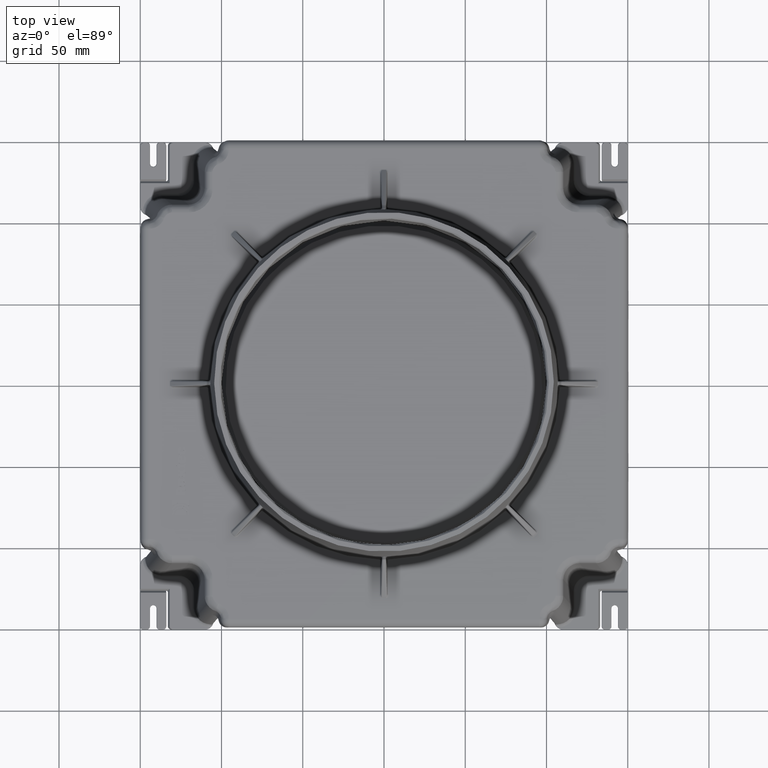
[diagram: clean part render]
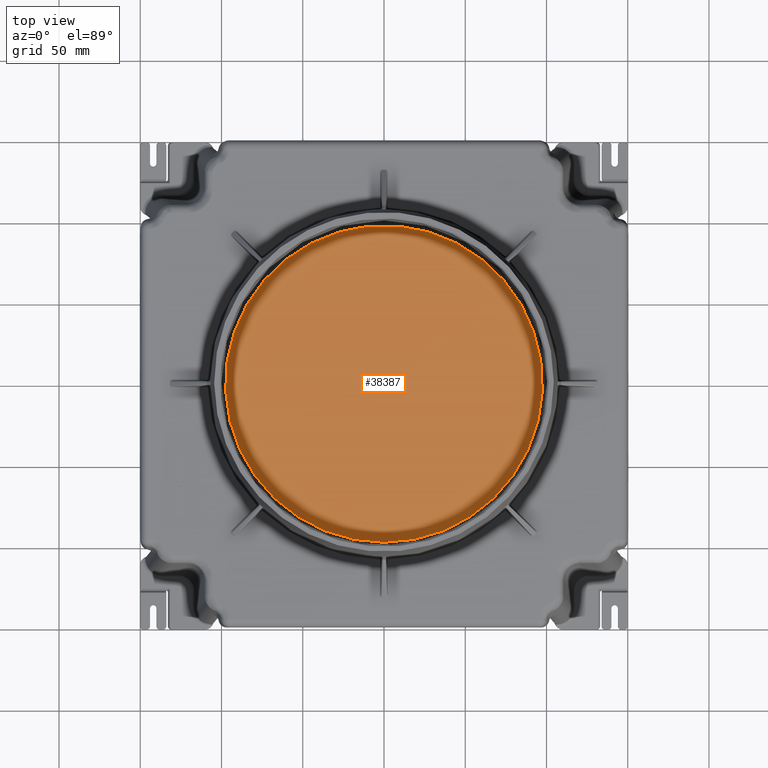
[diagram: same view with one face highlighted and labeled with its STEP entity id]
A machine part, top view. The second image highlights one B-rep face of the part: STEP entity #38387.
In plain terms, the highlighted planar face has unit normal (0, 0, 1).
Its self-contained STEP definition (entity closure, byte-faithful):
#38371=CARTESIAN_POINT('',(0.0,-48.75,-2.000000000000012));
#38372=DIRECTION('',(0.0,0.0,1.0));
#38373=DIRECTION('',(1.0,0.0,0.0));
#38374=AXIS2_PLACEMENT_3D('',#38371,#38372,#38373);
#38375=PLANE('',#38374);
#38376=CARTESIAN_POINT('',(0.0,-97.5,-2.000000000000024));
#38377=VERTEX_POINT('',#38376);
#38378=CARTESIAN_POINT('',(0.0,0.0,-2.000000000000024));
#38379=DIRECTION('',(0.0,0.0,1.0));
#38380=DIRECTION('',(0.0,-1.0,0.0));
#38381=AXIS2_PLACEMENT_3D('',#38378,#38379,#38380);
#38382=CIRCLE('',#38381,97.5);
#38383=EDGE_CURVE('',#38377,#38377,#38382,.T.);
#38384=ORIENTED_EDGE('',*,*,#38383,.T.);
#38385=EDGE_LOOP('',(#38384));
#38386=FACE_OUTER_BOUND('',#38385,.T.);
#38387=ADVANCED_FACE('',(#38386),#38375,.T.);